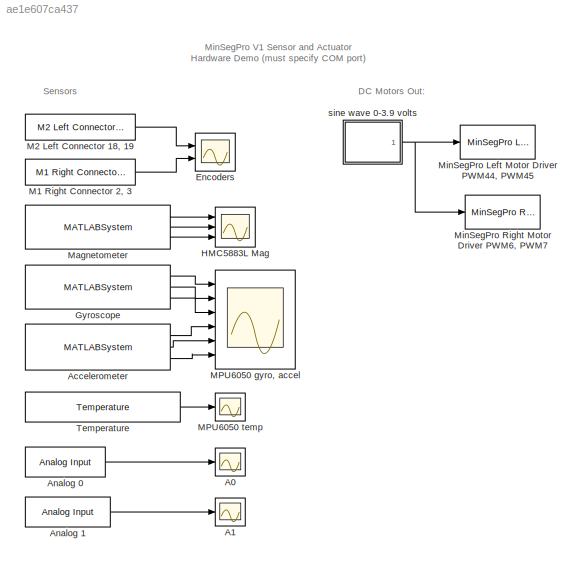
MODEL slx_ae1e607ca437
KIND model
CONFIG AbsTol = auto
CONFIG FixedStep = auto
CONFIG MaxStep = auto
CONFIG MinStep = auto
CONFIG RelTol = 1e-3
CONFIG SampleTimeConstraint = Unconstrained
CONFIG Solver = ode45
CONFIG SolverMode = Auto
CONFIG SolverName = ode45
CONFIG StartTime = 0.0
CONFIG StopTime = 10.0
BLOCK [Scope] A0 
  DataFormat = StructureWithTime
  Floating = off
  NumInputPorts = 1
  Ports = [1]
  SampleTime = 0
  SaveName = ScopeData3
  TimeRange = 30
  YMax = 1100
  YMin = 100
BLOCK [Scope] A1
  DataFormat = StructureWithTime
  Floating = off
  NumInputPorts = 1
  Ports = [1]
  SampleTime = 0
  SaveName = ScopeData4
  TimeRange = 30
  YMax = 1100
  YMin = 300
BLOCK [MATLABSystem] Accelerometer
  MaskDisplay = disp('soMPU6050Accel');\nport_label('output',1,'xaccel');\nport_label('output',2,'yaccel');\nport_label('output',3,'zaccel');
  MaskType = soMPU6050Accel
  Ports = [0, 3]
  SimulateUsing = Code generation
  System = soMPU6050Accel
BLOCK [Reference] Analog 0  REF=arduinolib/Analog Input
  Ports = [0, 1]
  SourceBlock = arduinolib/Analog Input
  SourceType = Arduino Analog Input
  blockPlatform = arduino
  pinNumber = 0
  sampleTime = -1
BLOCK [Reference] Analog 1  REF=arduinolib/Analog Input
  Ports = [0, 1]
  SourceBlock = arduinolib/Analog Input
  SourceType = Arduino Analog Input
  blockPlatform = arduino
  pinNumber = 1
  sampleTime = -1
BLOCK [Scope] Encoders
  DataFormat = StructureWithTime
  Floating = off
  NumInputPorts = 2
  Ports = [2]
  SampleTime = 0
  TimeRange = 30
  YMax = 150~25
  YMin = -300~-350
BLOCK [MATLABSystem] Gyroscope
  DLPFmode = 0
  MaskDisplay = disp('soMPU6050Gyro');\nport_label('output',1,'xvel');\nport_label('output',2,'yvel');\nport_label('output',3,'zvel');
  MaskType = soMPU6050Gyro
  Ports = [0, 3]
  System = soMPU6050Gyro
BLOCK [Scope] HMC5883L Mag
  DataFormat = StructureWithTime
  Floating = off
  NumInputPorts = 3
  Ports = [3]
  SampleTime = 0
  SaveName = ScopeData7
  TimeRange = 10
  YMax = -300~775~550
  YMin = -500~450~275
BLOCK [Reference] M1 Right Connector 2, 3  REF=MinSegLibrary_MinSegPro/M1 Right Connector 2, 3
  Encoder = 0
  PWMFSelect = 3
  PWMTimer = -1
  PinA = 2
  PinB = 3
  Ports = [0, 1]
  SourceBlock = MinSegLibrary_MinSegPro/M1 Right Connector 2, 3
  SourceType = Encoder_arduino
BLOCK [Reference] M2 Left Connector 18, 19  REF=MinSegLibrary_MinSegPro/M2 Left Connector 18, 19
  Encoder = 1
  PWMFSelect = 3
  PWMTimer = -1
  PinA = 19
  PinB = 18
  Ports = [0, 1]
  SourceBlock = MinSegLibrary_MinSegPro/M2 Left Connector 18, 19
  SourceType = Encoder_arduino
BLOCK [Scope] MPU6050 gyro, accel
  DataFormat = StructureWithTime
  Floating = off
  NumInputPorts = 6
  Ports = [6]
  SampleTime = 0
  SaveName = ScopeData1
  TimeRange = 10
  YMax = 40000~40000~40000~5000~3000~27500
  YMin = -40000~-40000~-40000~-12500~-8000~7500
BLOCK [Scope] MPU6050 temp
  DataFormat = StructureWithTime
  Floating = off
  NumInputPorts = 1
  Ports = [1]
  SampleTime = 0
  SaveName = ScopeData2
  TimeRange = 30
  YMax = -1750
  YMin = -3750
BLOCK [MATLABSystem] Magnetometer
  MaskDisplay = disp('soHMC5883L');\nport_label('output',1,'xmag');\nport_label('output',2,'ymag');\nport_label('output',3,'zmag');
  MaskType = soHMC5883L
  Ports = [0, 3]
  SimulateUsing = Code generation
  System = soHMC5883L
BLOCK [Reference] MinSegPro Left Motor Driver PWM44, PWM45  REF=MinSegLibrary_MinSegPro/MinSegPro Left Motor Driver
PWM44, PWM45
  PWMoffset = 0
  Ports = [1]
  SourceBlock = MinSegLibrary_MinSegPro/MinSegPro Left Motor Driver\nPWM44, PWM45
  Vsupply = 3.9
BLOCK [Reference] MinSegPro Right Motor Driver PWM6, PWM7   REF=MinSegLibrary_MinSegPro/MinSegPro Right Motor Driver
PWM6, PWM7

  PWMoffset = 0
  Ports = [1]
  SourceBlock = MinSegLibrary_MinSegPro/MinSegPro Right Motor Driver\nPWM6, PWM7
  Vsupply = 3.9
BLOCK [Reference] Temperature  REF=RASPlib/Temperature
  Ports = [0, 1]
  SimulateUsing = Code generation
  SourceBlock = RASPlib/Temperature
  SourceType = soMPU6050Temp
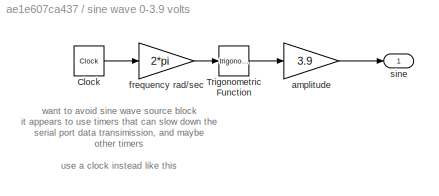
BLOCK [SubSystem] sine wave 0-3.9 volts
  Ports = [0, 1]
  RequestExecContextInheritance = off
BLOCK [Clock] sine wave 0-3.9 volts/Clock
BLOCK [Trigonometry] sine wave 0-3.9 volts/Trigonometric Function
  Ports = [1, 1]
BLOCK [Gain] sine wave 0-3.9 volts/amplitude
  Gain = 3.9
  OutDataTypeStr = Inherit: Inherit via internal rule
  ParamDataTypeStr = Inherit: Inherit via internal rule
  SaturateOnIntegerOverflow = off
BLOCK [Gain] sine wave 0-3.9 volts/frequency rad//sec
  Gain = 2*pi
  OutDataTypeStr = Inherit: Inherit via internal rule
  ParamDataTypeStr = Inherit: Inherit via internal rule
  SaturateOnIntegerOverflow = off
BLOCK [Outport] sine wave 0-3.9 volts/sine
  IconDisplay = Port number
ANNOTATION (root): DC Motors Out:
ANNOTATION (root): MinSegPro V1 Sensor and Actuator Hardware Demo (must specify COM port)
ANNOTATION (root): Sensors
ANNOTATION sine wave 0-3.9 volts: want to avoid sine wave source block it appears to use timers that can slow down the serial port data transimission, and maybe other timers use a clock instead like this
LINE Accelerometer:1 -> MPU6050 gyro, accel:4
LINE Accelerometer:2 -> MPU6050 gyro, accel:5
LINE Accelerometer:3 -> MPU6050 gyro, accel:6
LINE Analog 0:1 -> A0 :1
LINE Analog 1:1 -> A1:1
LINE Gyroscope:1 -> MPU6050 gyro, accel:1
LINE Gyroscope:2 -> MPU6050 gyro, accel:2
LINE Gyroscope:3 -> MPU6050 gyro, accel:3
LINE M1 Right Connector 2, 3:1 -> Encoders:2
LINE M2 Left Connector 18, 19:1 -> Encoders:1
LINE Magnetometer:1 -> HMC5883L Mag:1
LINE Magnetometer:2 -> HMC5883L Mag:2
LINE Magnetometer:3 -> HMC5883L Mag:3
LINE Temperature:1 -> MPU6050 temp:1
LINE sine wave 0-3.9 volts/Clock:1 -> sine wave 0-3.9 volts/frequency rad//sec:1
LINE sine wave 0-3.9 volts/Trigonometric Function:1 -> sine wave 0-3.9 volts/amplitude:1
LINE sine wave 0-3.9 volts/amplitude:1 -> sine wave 0-3.9 volts/sine:1
LINE sine wave 0-3.9 volts/frequency rad//sec:1 -> sine wave 0-3.9 volts/Trigonometric Function:1
NET sine wave 0-3.9 volts:1 -> MinSegPro Left Motor Driver PWM44, PWM45:1, MinSegPro Right Motor Driver PWM6, PWM7 :1
note: NET lines group one-source signal fan-out (src -> all destinations, sorted); 1:1 wires keep LINE
